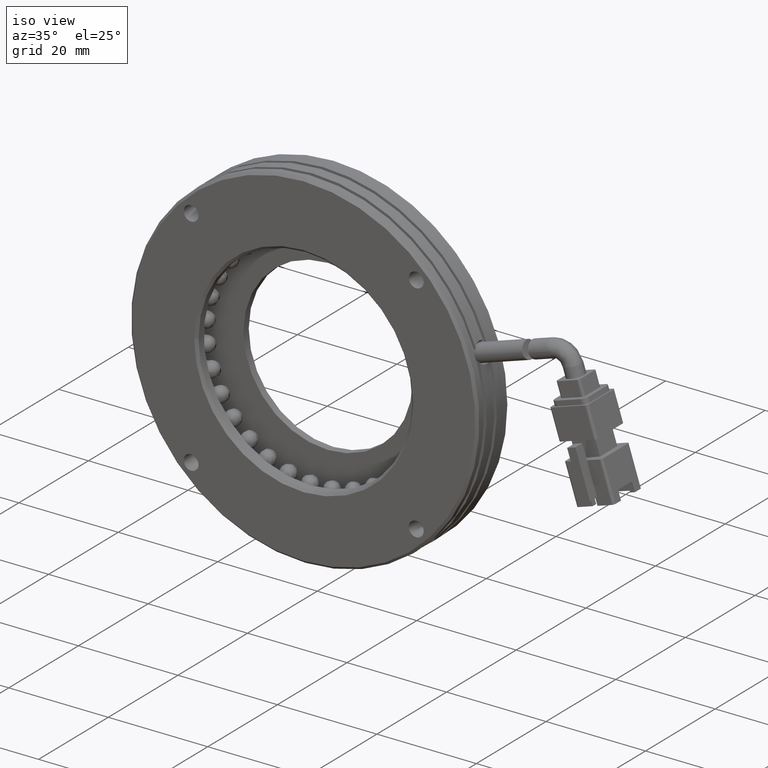
[diagram: clean part render]
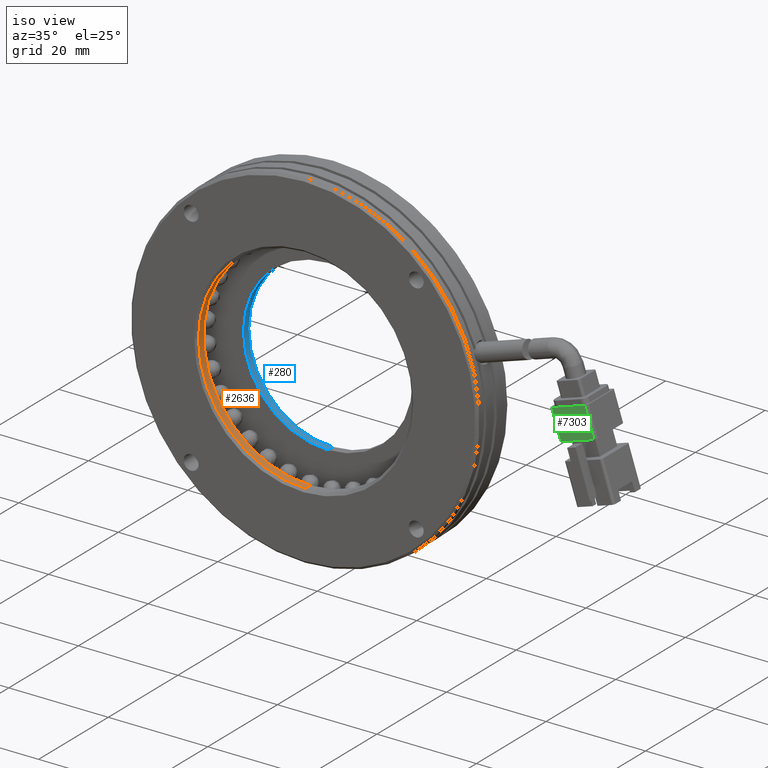
[diagram: same view with three faces highlighted in distinct colors, each labeled with its STEP entity id]
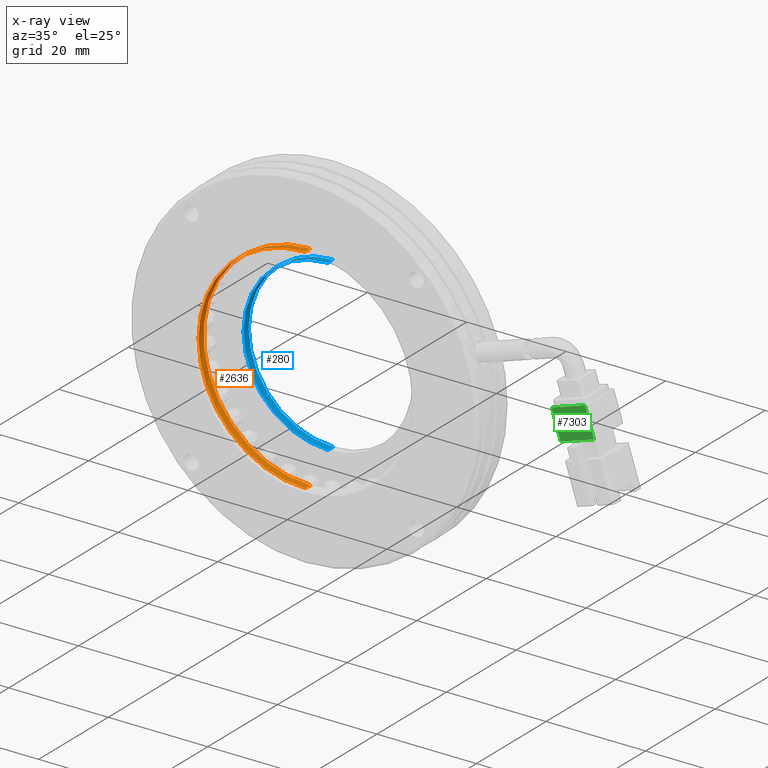
[diagram: x-ray of the same camera — body ghosted, the three highlighted faces saturated]
A machine part, iso view with three faces highlighted in distinct colors.
The next image is the same camera in x-ray (body ghosted, the three faces saturated) — at least one of them is partly hidden behind the body in this view.
Their STEP definitions:

[orange] entity #2636 — the highlighted cylindrical surface (partial cylindrical patch) has radius 21.5 mm, axis along (-0, -1, -0).
#650 = CARTESIAN_POINT ( 'NONE',  ( -5.709292144904565300, 4.760202915404257800, -21.50000000000000000 ) ) ;
#748 = CIRCLE ( 'NONE', #8109, 21.50000000000000000 ) ;
#2636 = ADVANCED_FACE ( 'NONE', ( #22245 ), #10094, .F. ) ;
#2818 = CARTESIAN_POINT ( 'NONE',  ( -5.709292144904565300, 6.260202915404280000, -21.50000000000000000 ) ) ;
#2922 = CARTESIAN_POINT ( 'NONE',  ( -5.709292144904565300, -49.82318178258231000, -21.50000000000000000 ) ) ;
#3076 = DIRECTION ( 'NONE',  ( 0.0000000000000000000, -1.000000000000000000, 0.0000000000000000000 ) ) ;
#3432 = CARTESIAN_POINT ( 'NONE',  ( -5.709292144904562600, -49.82318178258231000, 21.50000000000000000 ) ) ;
#3901 = VECTOR ( 'NONE', #25106, 1000.000000000000000 ) ;
#6360 = DIRECTION ( 'NONE',  ( 0.0000000000000000000, 0.0000000000000000000, -1.000000000000000000 ) ) ;
#6749 = VERTEX_POINT ( 'NONE', #10425 ) ;
#7641 = VECTOR ( 'NONE', #18057, 1000.000000000000000 ) ;
#7948 = EDGE_CURVE ( 'NONE', #18587, #22969, #8018, .T. ) ;
#8018 = CIRCLE ( 'NONE', #29614, 21.50000000000000000 ) ;
#8109 = AXIS2_PLACEMENT_3D ( 'NONE', #21599, #3076, #24708 ) ;
#10094 = CYLINDRICAL_SURFACE ( 'NONE', #25288, 21.50000000000000000 ) ;
#10425 = CARTESIAN_POINT ( 'NONE',  ( -27.20929214490456600, 4.760202915404257800, 2.663606788145493000E-015 ) ) ;
#12650 = EDGE_CURVE ( 'NONE', #36407, #6749, #36414, .T. ) ;
#15531 = CARTESIAN_POINT ( 'NONE',  ( -5.709292144904565300, 6.260202915404280000, 0.0000000000000000000 ) ) ;
#17462 = CARTESIAN_POINT ( 'NONE',  ( -5.709292144904562600, 6.260202915404280000, 21.50000000000000000 ) ) ;
#18057 = DIRECTION ( 'NONE',  ( -0.0000000000000000000, -1.000000000000000000, -0.0000000000000000000 ) ) ;
#18434 = CARTESIAN_POINT ( 'NONE',  ( -5.709292144904565300, 4.760202915404257800, 0.0000000000000000000 ) ) ;
#18587 = VERTEX_POINT ( 'NONE', #17462 ) ;
#18648 = DIRECTION ( 'NONE',  ( 0.0000000000000000000, 0.0000000000000000000, -1.000000000000000000 ) ) ;
#20694 = EDGE_CURVE ( 'NONE', #18587, #36407, #27638, .T. ) ;
#21441 = ORIENTED_EDGE ( 'NONE', *, *, #25728, .T. ) ;
#21577 = DIRECTION ( 'NONE',  ( 0.0000000000000000000, 0.0000000000000000000, -1.000000000000000000 ) ) ;
#21599 = CARTESIAN_POINT ( 'NONE',  ( -5.709292144904565300, 4.760202915404257800, 0.0000000000000000000 ) ) ;
#22245 = FACE_OUTER_BOUND ( 'NONE', #30735, .T. ) ;
#22488 = ORIENTED_EDGE ( 'NONE', *, *, #7948, .F. ) ;
#22969 = VERTEX_POINT ( 'NONE', #2818 ) ;
#24708 = DIRECTION ( 'NONE',  ( 0.0000000000000000000, 0.0000000000000000000, -1.000000000000000000 ) ) ;
#25106 = DIRECTION ( 'NONE',  ( -0.0000000000000000000, -1.000000000000000000, -0.0000000000000000000 ) ) ;
#25288 = AXIS2_PLACEMENT_3D ( 'NONE', #39708, #31425, #6360 ) ;
#25482 = ORIENTED_EDGE ( 'NONE', *, *, #12650, .T. ) ;
#25728 = EDGE_CURVE ( 'NONE', #6749, #31234, #748, .T. ) ;
#27638 = LINE ( 'NONE', #3432, #3901 ) ;
#28527 = LINE ( 'NONE', #2922, #7641 ) ;
#29104 = ORIENTED_EDGE ( 'NONE', *, *, #39608, .F. ) ;
#29614 = AXIS2_PLACEMENT_3D ( 'NONE', #15531, #37332, #18648 ) ;
#30735 = EDGE_LOOP ( 'NONE', ( #22488, #35550, #25482, #21441, #29104 ) ) ;
#31234 = VERTEX_POINT ( 'NONE', #650 ) ;
#31425 = DIRECTION ( 'NONE',  ( -0.0000000000000000000, -1.000000000000000000, -0.0000000000000000000 ) ) ;
#31998 = AXIS2_PLACEMENT_3D ( 'NONE', #18434, #40281, #21577 ) ;
#33678 = CARTESIAN_POINT ( 'NONE',  ( -5.709292144904562600, 4.760202915404257800, 21.50000000000000000 ) ) ;
#35550 = ORIENTED_EDGE ( 'NONE', *, *, #20694, .T. ) ;
#36407 = VERTEX_POINT ( 'NONE', #33678 ) ;
#36414 = CIRCLE ( 'NONE', #31998, 21.50000000000000000 ) ;
#37332 = DIRECTION ( 'NONE',  ( -0.0000000000000000000, -1.000000000000000000, -0.0000000000000000000 ) ) ;
#39608 = EDGE_CURVE ( 'NONE', #22969, #31234, #28527, .T. ) ;
#39708 = CARTESIAN_POINT ( 'NONE',  ( -5.709292144904565300, -49.82318178258231000, 0.0000000000000000000 ) ) ;
#40281 = DIRECTION ( 'NONE',  ( 0.0000000000000000000, -1.000000000000000000, 0.0000000000000000000 ) ) ;

[blue] entity #280 — the highlighted cylindrical surface (partial cylindrical patch) has radius 17 mm, axis along (-0, -1, -0).
#40 = LINE ( 'NONE', #39576, #24707 ) ;
#258 = AXIS2_PLACEMENT_3D ( 'NONE', #5004, #2960, #5469 ) ;
#280 = ADVANCED_FACE ( 'NONE', ( #26798 ), #31275, .F. ) ;
#747 = DIRECTION ( 'NONE',  ( 0.0000000000000000000, 1.000000000000000000, 0.0000000000000000000 ) ) ;
#1940 = EDGE_CURVE ( 'NONE', #36107, #37580, #36929, .T. ) ;
#2342 = DIRECTION ( 'NONE',  ( -0.0000000000000000000, -1.000000000000000000, -0.0000000000000000000 ) ) ;
#2960 = DIRECTION ( 'NONE',  ( -0.0000000000000000000, -1.000000000000000000, -0.0000000000000000000 ) ) ;
#4894 = CARTESIAN_POINT ( 'NONE',  ( -5.709292144904342300, -67.75338872902170800, -17.00000000000002100 ) ) ;
#5004 = CARTESIAN_POINT ( 'NONE',  ( -5.709292144904342300, -67.75338872902170800, -2.081668171172168500E-014 ) ) ;
#5469 = DIRECTION ( 'NONE',  ( 0.0000000000000000000, 0.0000000000000000000, -1.000000000000000000 ) ) ;
#6934 = DIRECTION ( 'NONE',  ( -0.0000000000000000000, 1.000000000000000000, -0.0000000000000000000 ) ) ;
#7204 = DIRECTION ( 'NONE',  ( 0.0000000000000000000, 0.0000000000000000000, 1.000000000000000000 ) ) ;
#7337 = CARTESIAN_POINT ( 'NONE',  ( -5.709292144904342300, 12.76020291540426400, -2.081668171172168500E-014 ) ) ;
#7377 = ORIENTED_EDGE ( 'NONE', *, *, #31923, .T. ) ;
#9206 = CARTESIAN_POINT ( 'NONE',  ( -5.709292144904340600, 12.76020291540426400, 16.99999999999998600 ) ) ;
#9633 = AXIS2_PLACEMENT_3D ( 'NONE', #7337, #6934, #7204 ) ;
#10362 = VERTEX_POINT ( 'NONE', #23395 ) ;
#10397 = ORIENTED_EDGE ( 'NONE', *, *, #20789, .F. ) ;
#16674 = AXIS2_PLACEMENT_3D ( 'NONE', #19231, #747, #22360 ) ;
#19231 = CARTESIAN_POINT ( 'NONE',  ( -5.709292144904342300, 11.26020291540426400, -2.081668171172168500E-014 ) ) ;
#20789 = EDGE_CURVE ( 'NONE', #10362, #32188, #24706, .T. ) ;
#22360 = DIRECTION ( 'NONE',  ( 0.0000000000000000000, 0.0000000000000000000, -1.000000000000000000 ) ) ;
#23395 = CARTESIAN_POINT ( 'NONE',  ( -5.709292144904342300, 11.26020291540426400, -17.00000000000002100 ) ) ;
#24706 = CIRCLE ( 'NONE', #16674, 17.00000000000000000 ) ;
#24707 = VECTOR ( 'NONE', #2342, 1000.000000000000000 ) ;
#25331 = EDGE_LOOP ( 'NONE', ( #29740, #7377, #10397, #31413 ) ) ;
#26798 = FACE_OUTER_BOUND ( 'NONE', #25331, .T. ) ;
#29740 = ORIENTED_EDGE ( 'NONE', *, *, #1940, .T. ) ;
#31275 = CYLINDRICAL_SURFACE ( 'NONE', #258, 17.00000000000000000 ) ;
#31413 = ORIENTED_EDGE ( 'NONE', *, *, #36232, .F. ) ;
#31923 = EDGE_CURVE ( 'NONE', #37580, #32188, #40, .T. ) ;
#32188 = VERTEX_POINT ( 'NONE', #32471 ) ;
#32471 = CARTESIAN_POINT ( 'NONE',  ( -5.709292144904340600, 11.26020291540426400, 16.99999999999997900 ) ) ;
#32859 = DIRECTION ( 'NONE',  ( -0.0000000000000000000, -1.000000000000000000, -0.0000000000000000000 ) ) ;
#34096 = VECTOR ( 'NONE', #32859, 1000.000000000000000 ) ;
#35069 = LINE ( 'NONE', #4894, #34096 ) ;
#35445 = CARTESIAN_POINT ( 'NONE',  ( -5.709292144904342300, 12.76020291540426400, -17.00000000000002800 ) ) ;
#36107 = VERTEX_POINT ( 'NONE', #35445 ) ;
#36232 = EDGE_CURVE ( 'NONE', #36107, #10362, #35069, .T. ) ;
#36929 = CIRCLE ( 'NONE', #9633, 17.00000000000000700 ) ;
#37580 = VERTEX_POINT ( 'NONE', #9206 ) ;
#39576 = CARTESIAN_POINT ( 'NONE',  ( -5.709292144904340600, -67.75338872902170800, 16.99999999999997900 ) ) ;

[green] entity #7303 — the highlighted planar face has unit normal (-0, 1, 0).
#228 = EDGE_CURVE ( 'NONE', #27913, #23233, #17111, .T. ) ;
#282 = CARTESIAN_POINT ( 'NONE',  ( 50.80655397514613700, 4.260202915404277300, 8.899951535528163800 ) ) ;
#708 = EDGE_CURVE ( 'NONE', #33334, #20946, #35513, .T. ) ;
#2429 = DIRECTION ( 'NONE',  ( 0.9510565162951532000, 1.502354214089062300E-016, 0.3090169943749484500 ) ) ;
#2614 = CARTESIAN_POINT ( 'NONE',  ( 50.80655397514613000, 4.260202915404277300, 8.899951535528183300 ) ) ;
#2735 = LINE ( 'NONE', #282, #7063 ) ;
#3377 = DIRECTION ( 'NONE',  ( 0.3090169943749484500, 2.194415329909673200E-016, -0.9510565162951532000 ) ) ;
#7063 = VECTOR ( 'NONE', #3377, 1000.000000000000100 ) ;
#7303 = ADVANCED_FACE ( 'NONE', ( #26491 ), #21413, .F. ) ;
#8860 = VECTOR ( 'NONE', #2429, 1000.000000000000100 ) ;
#9342 = DIRECTION ( 'NONE',  ( -2.106935394751884700E-016, 1.000000000000000000, 1.622760015244233400E-016 ) ) ;
#9575 = CARTESIAN_POINT ( 'NONE',  ( 44.14915836108003300, 4.260202915404276400, 6.736832574903515600 ) ) ;
#10042 = CARTESIAN_POINT ( 'NONE',  ( 50.80655397514613700, 4.260202915404277300, 8.899951535528178000 ) ) ;
#10668 = ORIENTED_EDGE ( 'NONE', *, *, #27194, .F. ) ;
#11032 = AXIS2_PLACEMENT_3D ( 'NONE', #27951, #9342, #31142 ) ;
#12459 = CARTESIAN_POINT ( 'NONE',  ( 52.66065594139582400, 4.260202915404280000, 3.193612437757259700 ) ) ;
#13673 = LINE ( 'NONE', #9575, #21910 ) ;
#13802 = ORIENTED_EDGE ( 'NONE', *, *, #38188, .F. ) ;
#17111 = LINE ( 'NONE', #2614, #8860 ) ;
#18934 = VECTOR ( 'NONE', #33906, 1000.000000000000100 ) ;
#20946 = VERTEX_POINT ( 'NONE', #38857 ) ;
#21413 = PLANE ( 'NONE',  #11032 ) ;
#21910 = VECTOR ( 'NONE', #28172, 1000.000000000000100 ) ;
#22702 = EDGE_LOOP ( 'NONE', ( #13802, #27904, #10668, #24777 ) ) ;
#23233 = VERTEX_POINT ( 'NONE', #10042 ) ;
#24777 = ORIENTED_EDGE ( 'NONE', *, *, #708, .F. ) ;
#26491 = FACE_OUTER_BOUND ( 'NONE', #22702, .T. ) ;
#27194 = EDGE_CURVE ( 'NONE', #20946, #27913, #13673, .T. ) ;
#27904 = ORIENTED_EDGE ( 'NONE', *, *, #228, .F. ) ;
#27913 = VERTEX_POINT ( 'NONE', #36487 ) ;
#27951 = CARTESIAN_POINT ( 'NONE',  ( 50.80655397514613700, 4.260202915404277300, 8.899951535528163800 ) ) ;
#28172 = DIRECTION ( 'NONE',  ( -0.3090169943749484500, -2.194415329909673200E-016, 0.9510565162951532000 ) ) ;
#31142 = DIRECTION ( 'NONE',  ( 0.3090169943749484500, 2.194415329909673200E-016, -0.9510565162951532000 ) ) ;
#33334 = VERTEX_POINT ( 'NONE', #12459 ) ;
#33906 = DIRECTION ( 'NONE',  ( -0.9510565162951532000, -7.511771070445336200E-017, -0.3090169943749484500 ) ) ;
#35513 = LINE ( 'NONE', #40192, #18934 ) ;
#36487 = CARTESIAN_POINT ( 'NONE',  ( 44.14915836108004000, 4.260202915404276400, 6.736832574903539600 ) ) ;
#38188 = EDGE_CURVE ( 'NONE', #23233, #33334, #2735, .T. ) ;
#38857 = CARTESIAN_POINT ( 'NONE',  ( 46.00326032732973400, 4.260202915404280000, 1.030493477132614900 ) ) ;
#40192 = CARTESIAN_POINT ( 'NONE',  ( 46.00326032732972000, 4.260202915404280000, 1.030493477132616600 ) ) ;